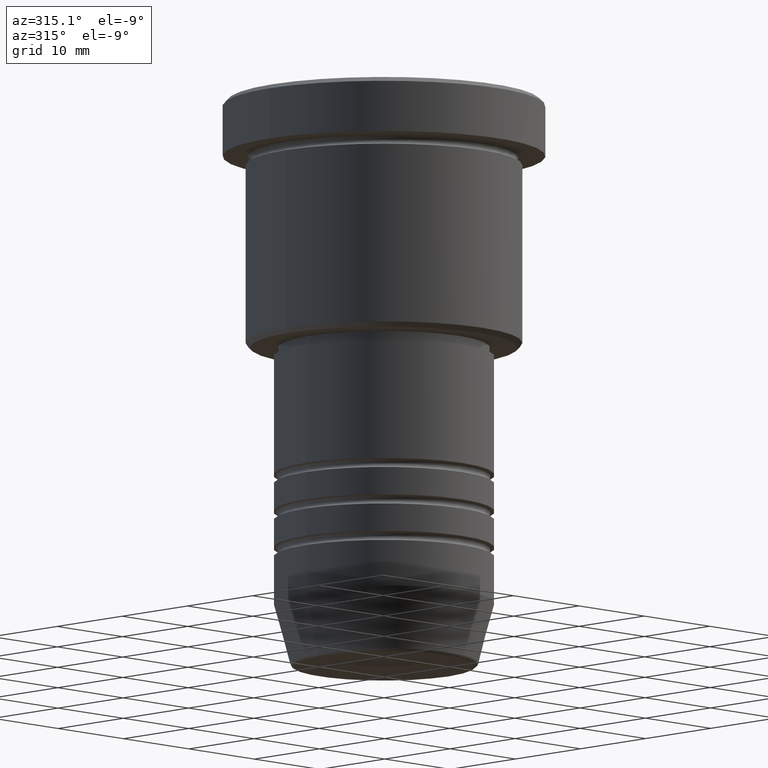
[diagram: clean part render]
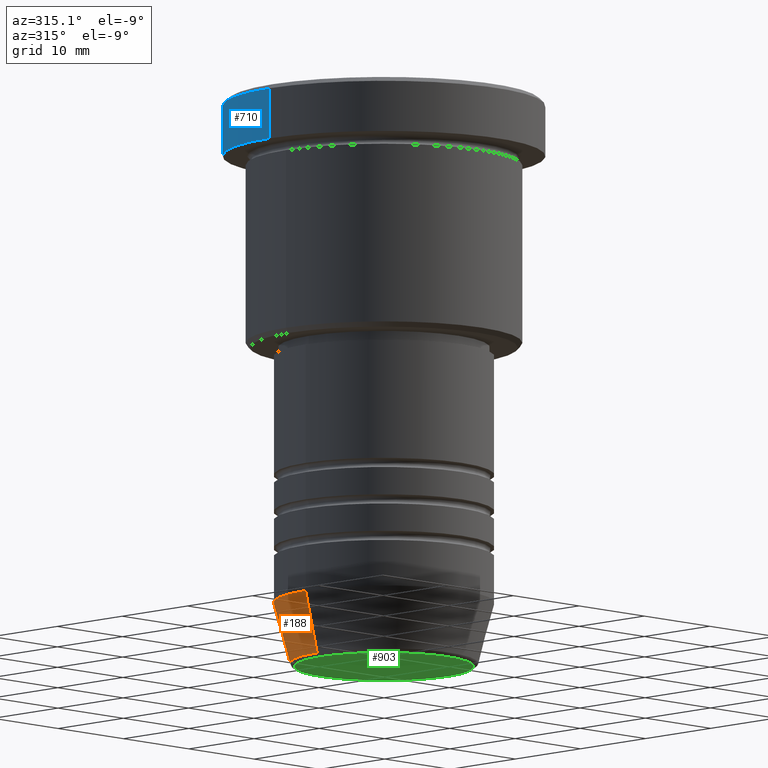
[diagram: same view with three faces highlighted in distinct colors, each labeled with its STEP entity id]
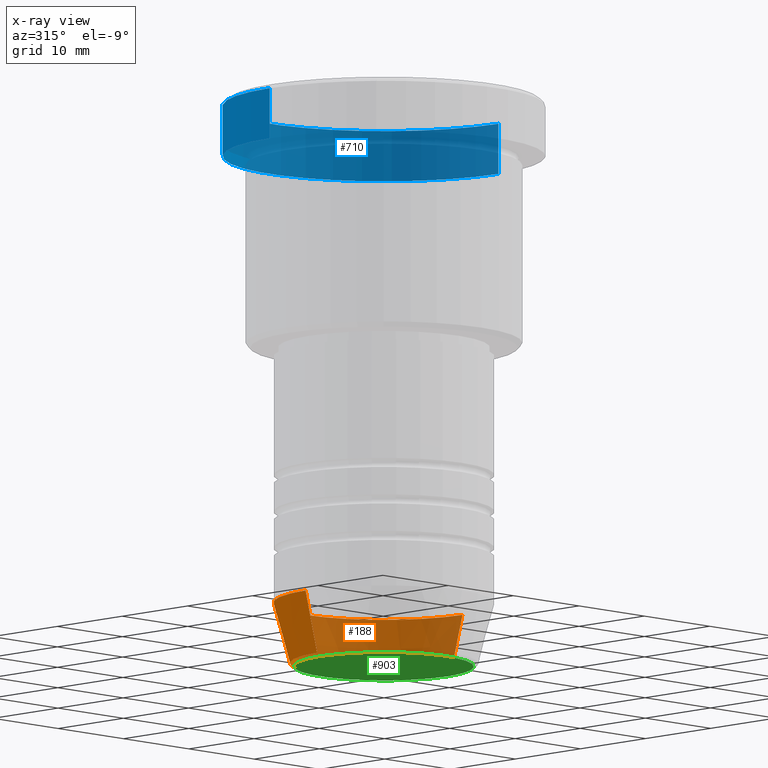
[diagram: x-ray of the same camera — body ghosted, the three highlighted faces saturated]
A machine part, auxiliary view with three faces highlighted in distinct colors.
The next image is the same camera in x-ray (body ghosted, the three faces saturated) — at least one of them is partly hidden behind the body in this view.
Their STEP definitions:

[orange] entity #188 — the highlighted conical surface has half-angle 15 deg.
#22 = EDGE_CURVE ( 'NONE', #92, #1028, #785, .T. ) ;
#36 = DIRECTION ( 'NONE',  ( -0.2588190451025215166, 3.169619151431774802E-17, 0.9659258262890679791 ) ) ;
#41 = DIRECTION ( 'NONE',  ( 1.000000000000000000, 0.000000000000000000, 0.000000000000000000 ) ) ;
#60 = DIRECTION ( 'NONE',  ( 1.000000000000000000, 0.000000000000000000, 0.000000000000000000 ) ) ;
#92 = VERTEX_POINT ( 'NONE', #632 ) ;
#128 = EDGE_LOOP ( 'NONE', ( #827, #518, #603, #715 ) ) ;
#153 = CARTESIAN_POINT ( 'NONE',  ( 0.000000000000000000, 0.000000000000000000, -55.00000000000000000 ) ) ;
#188 = ADVANCED_FACE ( 'NONE', ( #1141 ), #1116, .T. ) ;
#205 = CARTESIAN_POINT ( 'NONE',  ( 12.00000000000000000, 0.000000000000000000, -55.00000000000000000 ) ) ;
#222 = DIRECTION ( 'NONE',  ( 0.2588190451025215166, 0.000000000000000000, 0.9659258262890679791 ) ) ;
#224 = CARTESIAN_POINT ( 'NONE',  ( 0.000000000000000000, 0.000000000000000000, -55.00000000000000000 ) ) ;
#238 = CARTESIAN_POINT ( 'NONE',  ( -12.00000000000000000, 1.469576158976823947E-15, -55.00000000000000000 ) ) ;
#259 = EDGE_CURVE ( 'NONE', #949, #793, #433, .T. ) ;
#313 = DIRECTION ( 'NONE',  ( -0.000000000000000000, -0.000000000000000000, 1.000000000000000000 ) ) ;
#317 = DIRECTION ( 'NONE',  ( -0.000000000000000000, -0.000000000000000000, 1.000000000000000000 ) ) ;
#401 = LINE ( 'NONE', #673, #921 ) ;
#411 = AXIS2_PLACEMENT_3D ( 'NONE', #224, #317, #41 ) ;
#433 = CIRCLE ( 'NONE', #899, 10.22365507213718772 ) ;
#518 = ORIENTED_EDGE ( 'NONE', *, *, #838, .T. ) ;
#603 = ORIENTED_EDGE ( 'NONE', *, *, #22, .F. ) ;
#632 = CARTESIAN_POINT ( 'NONE',  ( 12.00000000000000000, 0.000000000000000000, -55.00000000000000000 ) ) ;
#633 = VECTOR ( 'NONE', #222, 1000.000000000000114 ) ;
#657 = CARTESIAN_POINT ( 'NONE',  ( -10.22365507213718772, 1.360806402472382547E-15, -61.62940952255126348 ) ) ;
#665 = DIRECTION ( 'NONE',  ( -0.000000000000000000, -0.000000000000000000, 1.000000000000000000 ) ) ;
#673 = CARTESIAN_POINT ( 'NONE',  ( -12.00000000000000000, 1.469576158976823947E-15, -55.00000000000000000 ) ) ;
#715 = ORIENTED_EDGE ( 'NONE', *, *, #795, .F. ) ;
#770 = CARTESIAN_POINT ( 'NONE',  ( 10.22365507213718772, 0.000000000000000000, -61.62940952255126348 ) ) ;
#785 = CIRCLE ( 'NONE', #961, 12.00000000000000000 ) ;
#793 = VERTEX_POINT ( 'NONE', #657 ) ;
#795 = EDGE_CURVE ( 'NONE', #949, #92, #1030, .T. ) ;
#827 = ORIENTED_EDGE ( 'NONE', *, *, #259, .T. ) ;
#838 = EDGE_CURVE ( 'NONE', #793, #1028, #401, .T. ) ;
#899 = AXIS2_PLACEMENT_3D ( 'NONE', #1138, #313, #1049 ) ;
#921 = VECTOR ( 'NONE', #36, 1000.000000000000114 ) ;
#949 = VERTEX_POINT ( 'NONE', #770 ) ;
#961 = AXIS2_PLACEMENT_3D ( 'NONE', #153, #665, #60 ) ;
#1028 = VERTEX_POINT ( 'NONE', #238 ) ;
#1030 = LINE ( 'NONE', #205, #633 ) ;
#1049 = DIRECTION ( 'NONE',  ( 1.000000000000000000, 0.000000000000000000, 0.000000000000000000 ) ) ;
#1116 = CONICAL_SURFACE ( 'NONE', #411, 12.00000000000000000, 0.2617993877991502960 ) ;
#1138 = CARTESIAN_POINT ( 'NONE',  ( 0.000000000000000000, 0.000000000000000000, -61.62940952255126348 ) ) ;
#1141 = FACE_OUTER_BOUND ( 'NONE', #128, .T. ) ;

[blue] entity #710 — the highlighted cylindrical surface (partial cylindrical patch) has radius 17.5 mm, axis along (-0, -0, 1).
#6 = AXIS2_PLACEMENT_3D ( 'NONE', #645, #1023, #465 ) ;
#24 = CARTESIAN_POINT ( 'NONE',  ( 17.50000000000000000, 0.000000000000000000, -5.999999999999995559 ) ) ;
#91 = FACE_OUTER_BOUND ( 'NONE', #561, .T. ) ;
#95 = EDGE_CURVE ( 'NONE', #157, #994, #821, .T. ) ;
#114 = VERTEX_POINT ( 'NONE', #200 ) ;
#116 = EDGE_CURVE ( 'NONE', #157, #814, #264, .T. ) ;
#127 = CARTESIAN_POINT ( 'NONE',  ( -17.50000000000000000, 2.143131898507868248E-15, -5.999999999999995559 ) ) ;
#137 = LINE ( 'NONE', #392, #964 ) ;
#157 = VERTEX_POINT ( 'NONE', #24 ) ;
#160 = CARTESIAN_POINT ( 'NONE',  ( 17.50000000000000000, 0.000000000000000000, -0.5000000000000073275 ) ) ;
#190 = CARTESIAN_POINT ( 'NONE',  ( 17.50000000000000000, 0.000000000000000000, 0.000000000000000000 ) ) ;
#194 = DIRECTION ( 'NONE',  ( 1.000000000000000000, 0.000000000000000000, 0.000000000000000000 ) ) ;
#200 = CARTESIAN_POINT ( 'NONE',  ( -17.50000000000000000, 2.143131898507868248E-15, -0.5000000000000073275 ) ) ;
#264 = CIRCLE ( 'NONE', #6, 17.50000000000000000 ) ;
#312 = DIRECTION ( 'NONE',  ( -0.000000000000000000, -0.000000000000000000, 1.000000000000000000 ) ) ;
#342 = VECTOR ( 'NONE', #366, 1000.000000000000000 ) ;
#366 = DIRECTION ( 'NONE',  ( -0.000000000000000000, -0.000000000000000000, 1.000000000000000000 ) ) ;
#392 = CARTESIAN_POINT ( 'NONE',  ( -17.50000000000000000, 2.143131898507868248E-15, 0.000000000000000000 ) ) ;
#434 = AXIS2_PLACEMENT_3D ( 'NONE', #1025, #816, #194 ) ;
#465 = DIRECTION ( 'NONE',  ( 1.000000000000000000, 0.000000000000000000, 0.000000000000000000 ) ) ;
#540 = CARTESIAN_POINT ( 'NONE',  ( 0.000000000000000000, 0.000000000000000000, -0.5000000000000073275 ) ) ;
#561 = EDGE_LOOP ( 'NONE', ( #747, #1045, #897, #1134 ) ) ;
#572 = AXIS2_PLACEMENT_3D ( 'NONE', #540, #1012, #745 ) ;
#634 = CYLINDRICAL_SURFACE ( 'NONE', #434, 17.50000000000000000 ) ;
#645 = CARTESIAN_POINT ( 'NONE',  ( 0.000000000000000000, 0.000000000000000000, -5.999999999999995559 ) ) ;
#710 = ADVANCED_FACE ( 'NONE', ( #91 ), #634, .T. ) ;
#744 = EDGE_CURVE ( 'NONE', #114, #994, #883, .T. ) ;
#745 = DIRECTION ( 'NONE',  ( 1.000000000000000000, 0.000000000000000000, 0.000000000000000000 ) ) ;
#747 = ORIENTED_EDGE ( 'NONE', *, *, #116, .T. ) ;
#814 = VERTEX_POINT ( 'NONE', #127 ) ;
#816 = DIRECTION ( 'NONE',  ( -0.000000000000000000, -0.000000000000000000, 1.000000000000000000 ) ) ;
#821 = LINE ( 'NONE', #190, #342 ) ;
#883 = CIRCLE ( 'NONE', #572, 17.50000000000000000 ) ;
#897 = ORIENTED_EDGE ( 'NONE', *, *, #744, .T. ) ;
#935 = EDGE_CURVE ( 'NONE', #814, #114, #137, .T. ) ;
#964 = VECTOR ( 'NONE', #312, 1000.000000000000000 ) ;
#994 = VERTEX_POINT ( 'NONE', #160 ) ;
#1012 = DIRECTION ( 'NONE',  ( 0.000000000000000000, 0.000000000000000000, -1.000000000000000000 ) ) ;
#1023 = DIRECTION ( 'NONE',  ( -0.000000000000000000, -0.000000000000000000, 1.000000000000000000 ) ) ;
#1025 = CARTESIAN_POINT ( 'NONE',  ( 0.000000000000000000, 0.000000000000000000, 0.000000000000000000 ) ) ;
#1045 = ORIENTED_EDGE ( 'NONE', *, *, #935, .T. ) ;
#1134 = ORIENTED_EDGE ( 'NONE', *, *, #95, .F. ) ;

[green] entity #903 — the highlighted planar face has unit normal (0, -0, 1).
#214 = CARTESIAN_POINT ( 'NONE',  ( 0.000000000000000000, 0.000000000000000000, -62.00000000000000000 ) ) ;
#305 = DIRECTION ( 'NONE',  ( 1.000000000000000000, 0.000000000000000000, 0.000000000000000000 ) ) ;
#334 = DIRECTION ( 'NONE',  ( 0.000000000000000000, 0.000000000000000000, -1.000000000000000000 ) ) ;
#454 = AXIS2_PLACEMENT_3D ( 'NONE', #214, #576, #854 ) ;
#576 = DIRECTION ( 'NONE',  ( 0.000000000000000000, -0.000000000000000000, 1.000000000000000000 ) ) ;
#612 = CIRCLE ( 'NONE', #1024, 9.740692158992654726 ) ;
#619 = CARTESIAN_POINT ( 'NONE',  ( 0.000000000000000000, 0.000000000000000000, -62.00000000000000000 ) ) ;
#751 = CARTESIAN_POINT ( 'NONE',  ( 9.740692158992654726, 0.000000000000000000, -62.00000000000000000 ) ) ;
#808 = VERTEX_POINT ( 'NONE', #751 ) ;
#817 = ORIENTED_EDGE ( 'NONE', *, *, #1051, .T. ) ;
#845 = CIRCLE ( 'NONE', #1010, 9.740692158992654726 ) ;
#847 = CARTESIAN_POINT ( 'NONE',  ( 0.000000000000000000, 0.000000000000000000, -62.00000000000000000 ) ) ;
#854 = DIRECTION ( 'NONE',  ( 1.000000000000000000, 0.000000000000000000, 0.000000000000000000 ) ) ;
#869 = DIRECTION ( 'NONE',  ( 0.000000000000000000, 0.000000000000000000, -1.000000000000000000 ) ) ;
#885 = DIRECTION ( 'NONE',  ( 1.000000000000000000, 0.000000000000000000, 0.000000000000000000 ) ) ;
#901 = ORIENTED_EDGE ( 'NONE', *, *, #1149, .T. ) ;
#903 = ADVANCED_FACE ( 'NONE', ( #955 ), #1054, .F. ) ;
#922 = EDGE_LOOP ( 'NONE', ( #901, #817 ) ) ;
#955 = FACE_OUTER_BOUND ( 'NONE', #922, .T. ) ;
#1010 = AXIS2_PLACEMENT_3D ( 'NONE', #847, #869, #305 ) ;
#1024 = AXIS2_PLACEMENT_3D ( 'NONE', #619, #334, #885 ) ;
#1051 = EDGE_CURVE ( 'NONE', #1060, #808, #612, .T. ) ;
#1054 = PLANE ( 'NONE',  #454 ) ;
#1060 = VERTEX_POINT ( 'NONE', #1160 ) ;
#1149 = EDGE_CURVE ( 'NONE', #808, #1060, #845, .T. ) ;
#1160 = CARTESIAN_POINT ( 'NONE',  ( -9.740692158992654726, 1.222463696683474210E-15, -62.00000000000000000 ) ) ;